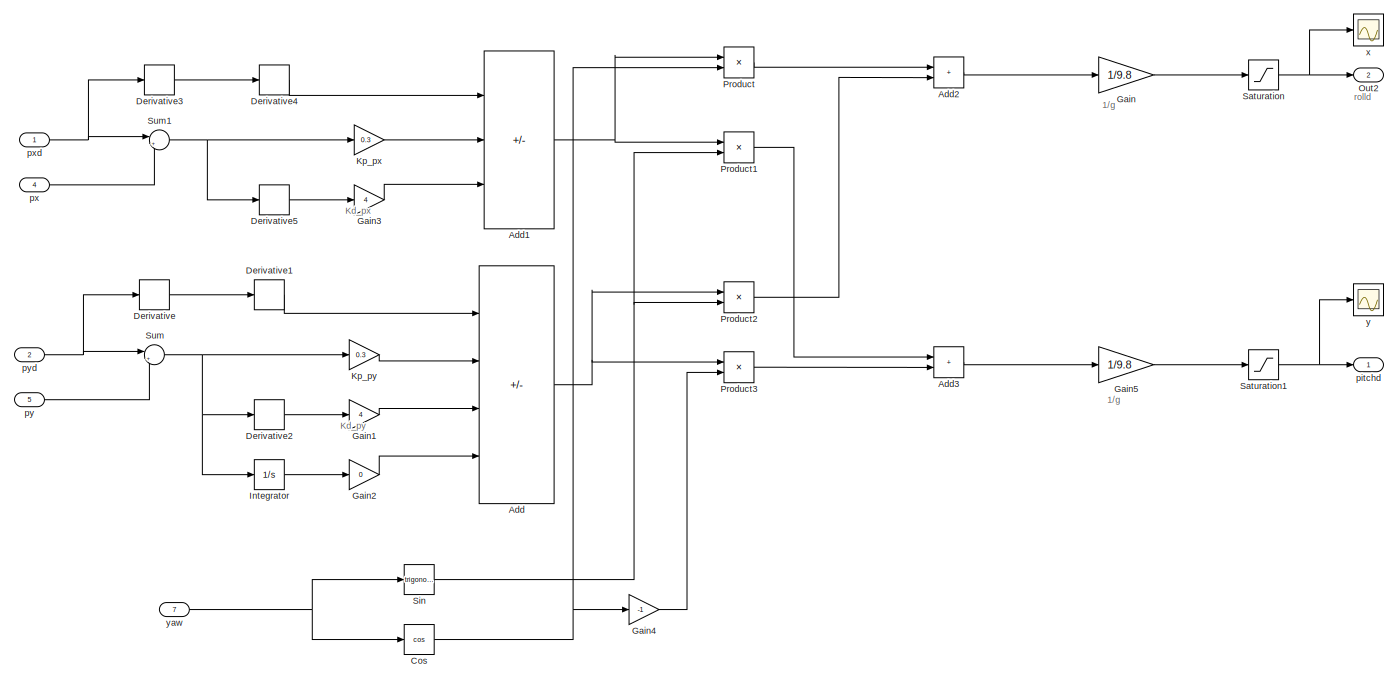
[diagram: root canvas - part 1/2, full width, middle band]
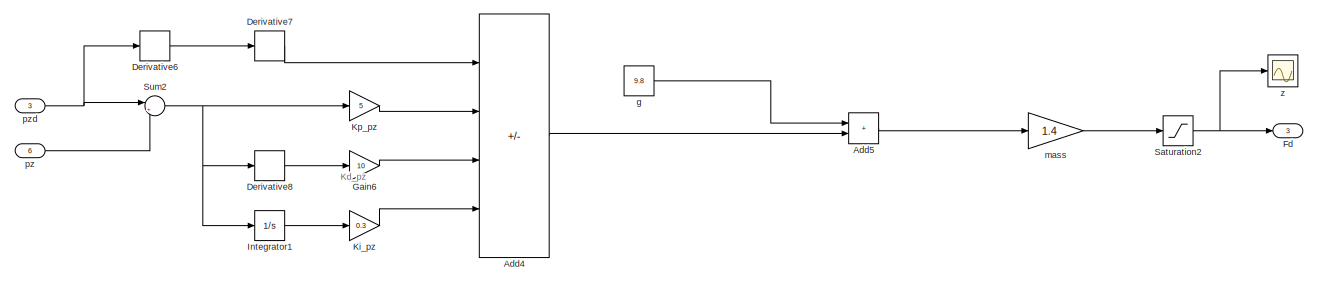
[diagram: root canvas - part 2/2, full width, bottom band]
MODEL slx_ef1648ae1257
KIND model
CONFIG AbsTol = auto
CONFIG EnableMultiTasking = off
CONFIG FixedStep = auto
CONFIG MaxStep = auto
CONFIG MinStep = auto
CONFIG RelTol = 1e-3
CONFIG SampleTimeConstraint = Unconstrained
CONFIG SolverName = VariableStepAuto
CONFIG StartTime = 0.0
CONFIG StopTime = 10.0
BLOCK [Sum] Add
  IconShape = rectangular
  Inputs = -+++
  Ports = [4, 1]
BLOCK [Sum] Add1
  IconShape = rectangular
  Inputs = -++
  Ports = [3, 1]
BLOCK [Sum] Add2
  IconShape = rectangular
  Ports = [2, 1]
BLOCK [Sum] Add3
  IconShape = rectangular
  Ports = [2, 1]
BLOCK [Sum] Add4
  IconShape = rectangular
  Inputs = -+++
  Ports = [4, 1]
BLOCK [Sum] Add5
  IconShape = rectangular
  Ports = [2, 1]
BLOCK [Trigonometry] Cos
  Operator = cos
  Ports = [1, 1]
BLOCK [Derivative] Derivative
BLOCK [Derivative] Derivative1
BLOCK [Derivative] Derivative2
BLOCK [Derivative] Derivative3
BLOCK [Derivative] Derivative4
BLOCK [Derivative] Derivative5
BLOCK [Derivative] Derivative6
BLOCK [Derivative] Derivative7
BLOCK [Derivative] Derivative8
BLOCK [Outport] Fd
  Port = 3
BLOCK [Gain] Gain
  Gain = 1/9.8
BLOCK [Gain] Gain1
  Gain = 4
BLOCK [Gain] Gain2
  Gain = 0
BLOCK [Gain] Gain3
  Gain = 4
BLOCK [Gain] Gain4
  Gain = -1
BLOCK [Gain] Gain5
  Gain = 1/9.8
BLOCK [Gain] Gain6
  Gain = 10
BLOCK [Integrator] Integrator
  Ports = [1, 1]
BLOCK [Integrator] Integrator1
  Ports = [1, 1]
BLOCK [Gain] Ki_pz
  Gain = 0.3
BLOCK [Gain] Kp_px
  Gain = 0.3
BLOCK [Gain] Kp_py
  Gain = 0.3
BLOCK [Gain] Kp_pz
  Gain = 5
BLOCK [Outport] Out2
  Port = 2
BLOCK [Product] Product
  Ports = [2, 1]
BLOCK [Product] Product1
  Ports = [2, 1]
BLOCK [Product] Product2
  Ports = [2, 1]
BLOCK [Product] Product3
  Ports = [2, 1]
BLOCK [Saturate] Saturation
BLOCK [Saturate] Saturation1
BLOCK [Saturate] Saturation2
BLOCK [Trigonometry] Sin
  Ports = [1, 1]
BLOCK [Sum] Sum
  Inputs = |+-
  Ports = [2, 1]
BLOCK [Sum] Sum1
  Inputs = |+-
  Ports = [2, 1]
BLOCK [Sum] Sum2
  Inputs = |+-
  Ports = [2, 1]
BLOCK [Constant] g
  Value = 9.8
BLOCK [Gain] mass
  Gain = 1.4
BLOCK [Outport] pitchd
BLOCK [Inport] px
  Port = 4
BLOCK [Inport] pxd
BLOCK [Inport] py
  Port = 5
BLOCK [Inport] pyd
  Port = 2
BLOCK [Inport] pz
  Port = 6
BLOCK [Inport] pzd
  Port = 3
BLOCK [Scope] x
  Floating = off
  NumInputPorts = 1
  Ports = [1]
  ScopeSpecificationString = Simulink.scopes.TimeScopeBlockCfg('CurrentConfiguration', extmgr.ConfigurationSet(extmgr.Configuration('Core','General UI',true),extmgr.Configuration('Core','Source UI',true),extmgr.Configuration('Sources','WiredSimulink',true,'DataLoggingVariableName','ScopeData1'),extmgr.Configuration('Visuals','Time Domain',true,'SerializedDisplays',{struct('MinYLimReal','-1.00000','MaxYLimReal','1.00000','YLab...<+1404ch>
BLOCK [Scope] y
  Floating = off
  NumInputPorts = 1
  Ports = [1]
  ScopeSpecificationString = Simulink.scopes.TimeScopeBlockCfg('CurrentConfiguration', extmgr.ConfigurationSet(extmgr.Configuration('Core','General UI',true),extmgr.Configuration('Core','Source UI',true),extmgr.Configuration('Sources','WiredSimulink',true,'DataLoggingVariableName','ScopeData2'),extmgr.Configuration('Visuals','Time Domain',true,'SerializedDisplays',{struct('MinYLimReal','-1.00000','MaxYLimReal','1.00000','YLab...<+1407ch>
BLOCK [Inport] yaw
  Port = 7
BLOCK [Scope] z
  Floating = off
  NumInputPorts = 1
  Ports = [1]
  ScopeSpecificationString = Simulink.scopes.TimeScopeBlockCfg('CurrentConfiguration', extmgr.ConfigurationSet(extmgr.Configuration('Core','General UI',true),extmgr.Configuration('Core','Source UI',true),extmgr.Configuration('Sources','WiredSimulink',true),extmgr.Configuration('Visuals','Time Domain',true,'SerializedDisplays',{struct('MinYLimReal','0.4','MaxYLimReal','0.6','YLabelReal','','MinYLimMag','0.4','MaxYLimMag','0.6'...<+1331ch>
ANNOTATION (root): 1/g
ANNOTATION (root): Kd_px
ANNOTATION (root): Kd_py
ANNOTATION (root): Kd_pz
ANNOTATION (root): rolld
NET Add1:1 -> Product1:1, Product:1
LINE Add2:1 -> Gain:1
LINE Add3:1 -> Gain5:1
LINE Add4:1 -> Add5:2
LINE Add5:1 -> mass:1
NET Add:1 -> Product2:1, Product3:1
NET Cos:1 -> Gain4:1, Product:2
LINE Derivative1:1 -> Add:1
LINE Derivative2:1 -> Gain1:1
LINE Derivative3:1 -> Derivative4:1
LINE Derivative4:1 -> Add1:1
LINE Derivative5:1 -> Gain3:1
LINE Derivative6:1 -> Derivative7:1
LINE Derivative7:1 -> Add4:1
LINE Derivative8:1 -> Gain6:1
LINE Derivative:1 -> Derivative1:1
LINE Gain1:1 -> Add:3
LINE Gain2:1 -> Add:4
LINE Gain3:1 -> Add1:3
LINE Gain4:1 -> Product3:2
LINE Gain5:1 -> Saturation1:1
LINE Gain6:1 -> Add4:3
LINE Gain:1 -> Saturation:1
LINE Integrator1:1 -> Ki_pz:1
LINE Integrator:1 -> Gain2:1
LINE Ki_pz:1 -> Add4:4
LINE Kp_px:1 -> Add1:2
LINE Kp_py:1 -> Add:2
LINE Kp_pz:1 -> Add4:2
LINE Product1:1 -> Add3:1
LINE Product2:1 -> Add2:2
LINE Product3:1 -> Add3:2
LINE Product:1 -> Add2:1
NET Saturation1:1 -> pitchd:1, y:1
NET Saturation2:1 -> Fd:1, z:1
NET Saturation:1 -> Out2:1, x:1
NET Sin:1 -> Product1:2, Product2:2
NET Sum1:1 -> Derivative5:1, Kp_px:1
NET Sum2:1 -> Derivative8:1, Integrator1:1, Kp_pz:1
NET Sum:1 -> Derivative2:1, Integrator:1, Kp_py:1
LINE g:1 -> Add5:1
LINE mass:1 -> Saturation2:1
LINE px:1 -> Sum1:2
NET pxd:1 -> Derivative3:1, Sum1:1
LINE py:1 -> Sum:2
NET pyd:1 -> Derivative:1, Sum:1
LINE pz:1 -> Sum2:2
NET pzd:1 -> Derivative6:1, Sum2:1
NET yaw:1 -> Cos:1, Sin:1
note: NET lines group one-source signal fan-out (src -> all destinations, sorted); 1:1 wires keep LINE
